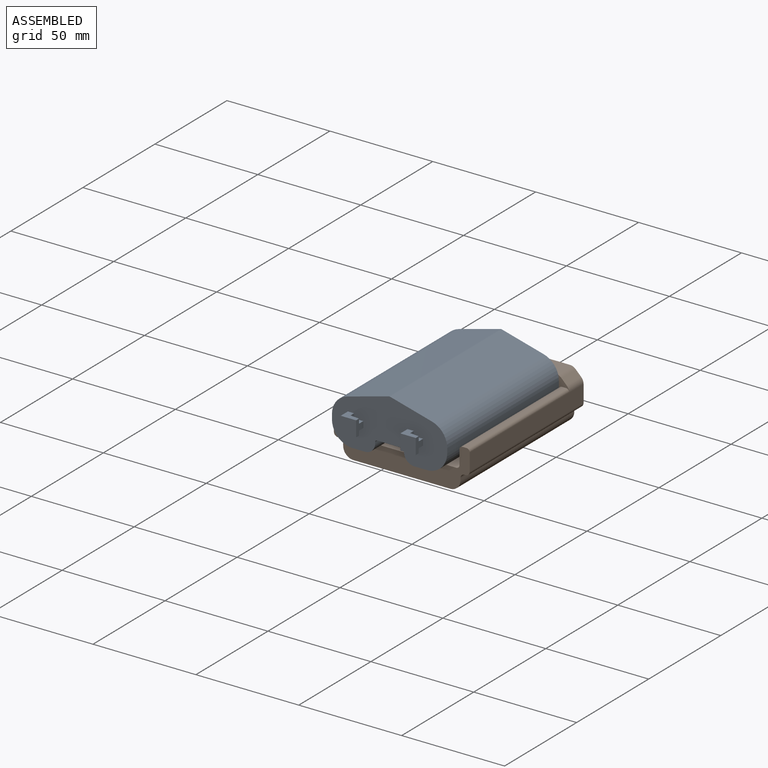
[diagram: assembled view]
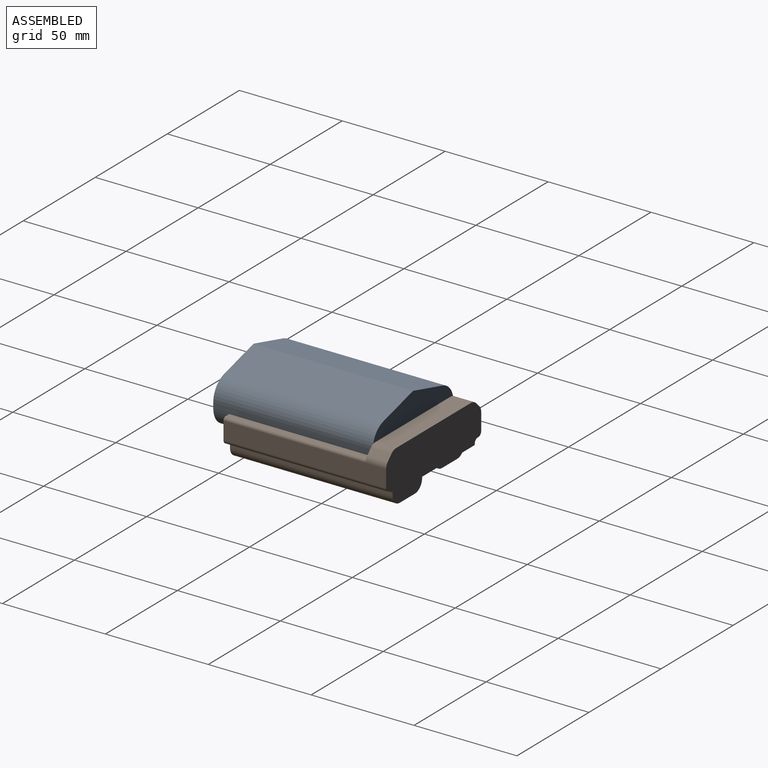
[diagram: assembled view, second angle]
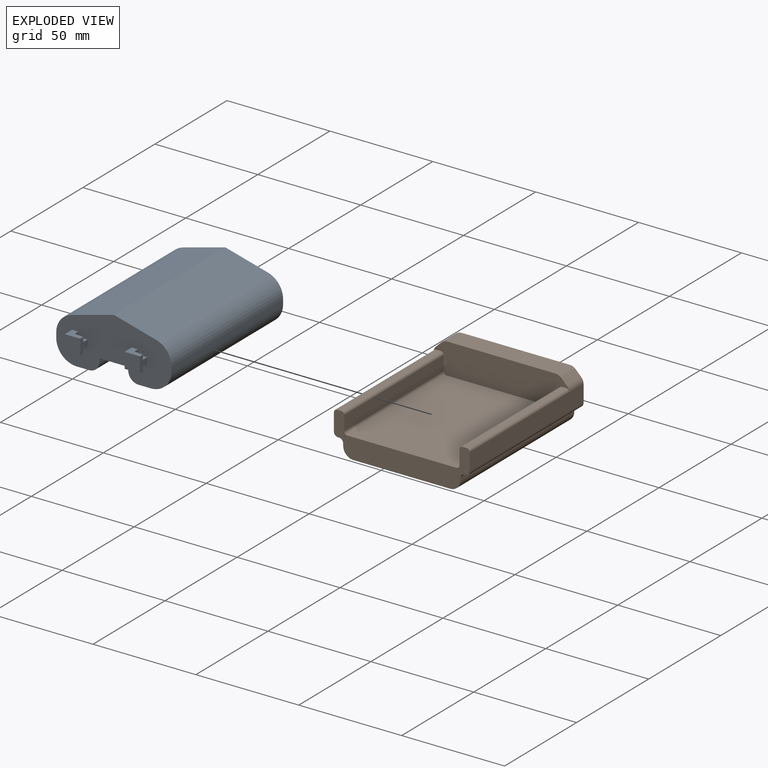
[diagram: exploded view]
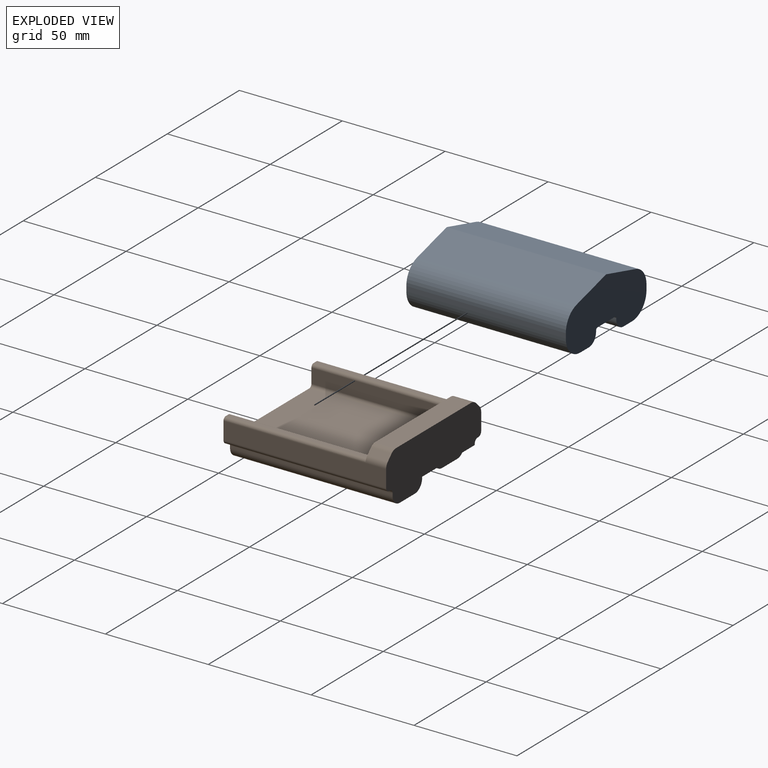
[diagram: exploded view, second angle]
ASSEMBLY  parts=2 mates=3
PART A: 41 faces, bbox 56x82.5x27.5 mm
  f0: plane 7.5x5mm, normal (1,0,0), area 24mm2, adj f2,f22,f23,f24,f30,f31,f38,f40
  f1: plane 7.5x5mm, normal (1,0,0), area 24mm2, adj f2,f26,f27,f28,f33,f34,f35,f37
  f2: plane 56x27.5mm, normal (0,-1,0), area 1091.2mm2, adj f0,f1,f3,f4,f5,f6,f7,f8
  f3: plane 77.5x0.5mm, normal (-1,0,0), area 38.7mm2, adj f2,f4,f19,f20
  f4: cylinder r=5mm len=77.5mm, axis (0,1,0), area 608.7mm2, adj f2,f3,f5,f20
  f5: plane 77.5x6mm, normal (0,0,-1), area 465mm2, adj f2,f4,f6,f20
  f6: cylinder r=10mm len=77.5mm, axis (0,1,0), area 1217.4mm2, adj f2,f5,f7,f20
  f7: plane 77.5x2.33mm, normal (1,0,0), area 180.3mm2, adj f2,f6,f8,f20
  f8: cylinder r=10mm len=77.5mm, axis (0,1,0), area 1014.5mm2, adj f2,f7,f9,f20
  f9: plane 77.5x20.59mm, normal (0.26,0,0.97), area 1651.8mm2, adj f2,f8,f10,f20
  f10: plane 77.5x20.59mm, normal (-0.26,0,0.97), area 1651.8mm2, adj f2,f9,f11,f20
  f11: cylinder r=10mm len=77.5mm, axis (0,1,0), area 1014.5mm2, adj f2,f10,f12,f20
  f12: plane 77.5x2.33mm, normal (-1,0,0), area 180.3mm2, adj f2,f11,f13,f20
  f13: cylinder r=10mm len=77.5mm, axis (0,1,0), area 1217.4mm2, adj f2,f12,f14,f20
  f14: plane 77.5x6mm, normal (0,0,-1), area 465mm2, adj f2,f13,f15,f20
  f15: cylinder r=5mm len=77.5mm, axis (0,1,0), area 608.7mm2, adj f2,f14,f16,f20
  f16: plane 77.5x0.5mm, normal (1,0,0), area 38.7mm2, adj f2,f15,f17,f20
  f17: cylinder r=1mm len=77.5mm, axis (0,1,0), area 121.7mm2, adj f2,f16,f18,f20
  f18: plane 77.5x12mm, normal (0,0,-1), area 930mm2, adj f2,f17,f19,f20
  f19: cylinder r=1mm len=77.5mm, axis (0,1,0), area 121.7mm2, adj f2,f3,f18,f20
  f20: plane 56x27.5mm, normal (0,1,0), area 1163.2mm2, adj f3,f4,f5,f6,f7,f8,f9,f10
  f21: plane 7.5x5mm, normal (-1,0,0), area 37.5mm2, adj f2,f22,f23,f24
  f22: plane 7.5x5mm, normal (0,0,-1), area 25.1mm2, adj f0,f2,f21,f24,f38,f39
  f23: plane 7.5x5mm, normal (0,0,1), area 25.1mm2, adj f0,f2,f21,f24,f29,f30
  f24: plane 7.5x7.5mm, normal (0,-1,0), area 56.3mm2, adj f0,f21,f22,f23
  f25: plane 7.5x5mm, normal (-1,0,0), area 37.5mm2, adj f2,f26,f27,f28
  f26: plane 7.5x5mm, normal (0,0,-1), area 25.1mm2, adj f1,f2,f25,f28,f35,f36
  f27: plane 7.5x5mm, normal (0,0,1), area 25.1mm2, adj f1,f2,f25,f28,f32,f33
  f28: plane 7.5x7.5mm, normal (0,-1,0), area 56.2mm2, adj f1,f25,f26,f27
  f29: plane 2.5x2.25mm, normal (1,0,0), area 5.6mm2, adj f2,f23,f30,f31
  f30: plane 4.5x2.25mm, normal (0.11,0.99,0), area 10.2mm2, adj f0,f23,f29,f31
  f31: plane 4.5x3mm, normal (0,0,1), area 12.4mm2, adj f0,f2,f29,f30
  f32: plane 2.5x2.25mm, normal (1,0,0), area 5.6mm2, adj f2,f27,f33,f34
  f33: plane 4.5x2.25mm, normal (0.11,0.99,0), area 10.2mm2, adj f1,f27,f32,f34
  f34: plane 4.5x3mm, normal (0,0,1), area 12.4mm2, adj f1,f2,f32,f33
  f35: plane 4.5x2.25mm, normal (0.11,0.99,0), area 10.2mm2, adj f1,f26,f36,f37
  f36: plane 2.5x2.25mm, normal (1,0,0), area 5.6mm2, adj f2,f26,f35,f37
  f37: plane 4.5x3mm, normal (0,0,-1), area 12.4mm2, adj f1,f2,f35,f36
  f38: plane 4.5x2.25mm, normal (0.11,0.99,0), area 10.2mm2, adj f0,f22,f39,f40
  f39: plane 2.5x2.25mm, normal (1,0,0), area 5.6mm2, adj f2,f22,f38,f40
  f40: plane 4.5x3mm, normal (0,0,-1), area 12.4mm2, adj f0,f2,f38,f39
PART B: 82 faces, bbox 66x79x25 mm
  f0: plane 11x0.5mm, normal (1,0,0), area 5.5mm2, adj f1,f9,f61,f65
  f1: cylinder r=5mm len=66mm, axis (0,1,0), area 475.3mm2, adj f0,f2,f8,f13,f25,f45,f46,f47
  f2: plane 79x47mm, normal (0,0,-1), area 1719.5mm2, adj f1,f3,f6,f15,f24,f25,f37,f65
  f3: plane 66x25mm, normal (0,1,0), area 1339.9mm2, adj f2,f4,f6,f9,f10,f11,f12,f15
  f4: plane 16x0.5mm, normal (-1,0,0), area 8mm2, adj f3,f6,f9,f60
  f5: plane 13.5x0.5mm, normal (-1,0,0), area 6.7mm2, adj f6,f9,f55,f58
  f6: cylinder r=5mm len=71mm, axis (0,1,0), area 503.5mm2, adj f2,f3,f4,f5,f7,f14,f25,f49
  f7: plane 15.5x0.5mm, normal (-1,0,0), area 7.7mm2, adj f6,f9,f52,f56
  f8: plane 32x0.5mm, normal (1,0,0), area 16mm2, adj f1,f9,f46,f62
  f9: plane 71x36.5mm, normal (0,0,-1), area 1192mm2, adj f0,f3,f4,f5,f7,f8,f13,f14
  f10: plane 52.27x10mm, normal (0,0,1), area 522.7mm2, adj f3,f38,f41,f44
  f11: plane 79x8.34mm, normal (1,0,0), area 659.1mm2, adj f3,f19,f37,f42
  f12: plane 79x8.34mm, normal (-1,0,0), area 659.1mm2, adj f3,f20,f37,f43
  f13: plane 12x0.5mm, normal (1,0,0), area 6mm2, adj f1,f9,f25,f45
  f14: plane 12x0.5mm, normal (-1,0,0), area 6mm2, adj f6,f9,f25,f50
  f15: cylinder r=5mm len=79mm, axis (0,1,0), area 620.5mm2, adj f2,f3,f16,f37
  f16: plane 79x1mm, normal (1,0,0), area 79mm2, adj f3,f15,f17,f37
  f17: cylinder r=2mm len=79mm, axis (0,1,0), area 248.2mm2, adj f3,f16,f18,f37
  f18: plane 79x0.5mm, normal (0,0,-1), area 39.5mm2, adj f3,f17,f19,f37
  f19: cylinder r=2mm len=79mm, axis (0,1,0), area 248.2mm2, adj f3,f11,f18,f37
  f20: cylinder r=2mm len=79mm, axis (0,1,0), area 248.2mm2, adj f3,f12,f21,f37
  f21: plane 79x0.5mm, normal (0,0,-1), area 39.5mm2, adj f3,f20,f22,f37
  f22: cylinder r=2mm len=79mm, axis (0,1,0), area 248.2mm2, adj f3,f21,f23,f37
  f23: plane 79x1mm, normal (-1,0,0), area 76.5mm2, adj f3,f9,f22,f24,f37,f65
  f24: cylinder r=5mm len=74mm, axis (0,1,0), area 581.2mm2, adj f2,f23,f37,f65
  f25: plane 26x5.5mm, normal (0,1,0), area 98.7mm2, adj f1,f2,f6,f9,f13,f14
  f26: cylinder r=1.5mm len=69mm, axis (0,1,0), area 145.5mm2, adj f27,f37,f38,f42
  f27: plane 69x2mm, normal (0,0,1), area 138mm2, adj f26,f28,f37,f38
  f28: cylinder r=1.5mm len=69mm, axis (0,1,0), area 162.6mm2, adj f27,f29,f37,f38
  f29: plane 69x7mm, normal (-1,0,0), area 483mm2, adj f28,f30,f37,f38
  f30: cylinder r=1.5mm len=69mm, axis (0,1,0), area 162.6mm2, adj f29,f31,f37,f38
  f31: plane 69x53mm, normal (0,0,1), area 3657mm2, adj f30,f32,f37,f38
  f32: cylinder r=1.5mm len=69mm, axis (0,1,0), area 162.6mm2, adj f31,f33,f37,f38
  f33: plane 69x7mm, normal (1,0,0), area 483mm2, adj f32,f34,f37,f38
  f34: cylinder r=1.5mm len=69mm, axis (0,1,0), area 162.6mm2, adj f33,f35,f37,f38
  f35: plane 69x2mm, normal (0,0,1), area 138mm2, adj f34,f36,f37,f38
  f36: cylinder r=1.5mm len=69mm, axis (0,1,0), area 145.5mm2, adj f35,f37,f38,f43
  f37: plane 66x20mm, normal (0,-1,0), area 676.3mm2, adj f2,f11,f12,f15,f16,f17,f18,f19
  f38: plane 65.96x15mm, normal (0,-1,0), area 864.4mm2, adj f10,f26,f27,f28,f29,f30,f31,f32
  f39: plane 10x2.36mm, normal (-0.71,0,0.71), area 33.4mm2, adj f3,f38,f43,f44
  f40: plane 10x2.66mm, normal (0.71,0,0.71), area 37.6mm2, adj f3,f38,f41,f42
  f41: cylinder r=4mm len=10mm, axis (0,-1,0), area 31.4mm2, adj f3,f10,f38,f40
  f42: cylinder r=4mm len=79mm, axis (0,1,0), area 59.3mm2, adj f3,f11,f26,f37,f38,f40
  f43: cylinder r=4mm len=79mm, axis (0,-1,0), area 59.3mm2, adj f3,f12,f36,f37,f38,f39
  f44: cylinder r=5mm len=10mm, axis (0,-1,0), area 39.3mm2, adj f3,f10,f38,f39
  f45: plane 4.6x3.64mm, normal (0,-1,0), area 9.5mm2, adj f1,f9,f13,f47,f48
  f46: plane 4.6x3.64mm, normal (0,1,0), area 9.5mm2, adj f1,f8,f9,f47,f48
  f47: plane 8x3.64mm, normal (0,0,-1), area 29.1mm2, adj f1,f45,f46,f48
  f48: plane 8x4.6mm, normal (1,0,0), area 36.8mm2, adj f9,f45,f46,f47
  f49: plane 8x3.64mm, normal (0,0,-1), area 29.1mm2, adj f6,f50,f51,f52
  f50: plane 4.6x3.64mm, normal (0,-1,0), area 9.5mm2, adj f6,f9,f14,f49,f51
  f51: plane 8x4.6mm, normal (-1,0,0), area 36.8mm2, adj f9,f49,f50,f52
  f52: plane 4.6x3.64mm, normal (0,1,0), area 9.5mm2, adj f6,f7,f9,f49,f51
  f53: plane 3.17x3mm, normal (0,0,-1), area 9.5mm2, adj f6,f54,f55,f56
  f54: plane 3x3mm, normal (-1,0,0), area 9mm2, adj f9,f53,f55,f56
  f55: plane 3.17x3mm, normal (0,1,0), area 8mm2, adj f5,f6,f9,f53,f54
  f56: plane 3.17x3mm, normal (0,-1,0), area 8mm2, adj f6,f7,f9,f53,f54
  f57: plane 3.17x3mm, normal (0,0,-1), area 9.5mm2, adj f6,f58,f59,f60
  f58: plane 3.17x3mm, normal (0,-1,0), area 8mm2, adj f5,f6,f9,f57,f59
  f59: plane 3x3mm, normal (-1,0,0), area 9mm2, adj f9,f57,f58,f60
  f60: plane 3.17x3mm, normal (0,1,0), area 8mm2, adj f4,f6,f9,f57,f59
  f61: plane 2.73x2mm, normal (0,1,0), area 5.1mm2, adj f0,f1,f9,f63,f64
  f62: plane 2.73x2mm, normal (0,-1,0), area 5.1mm2, adj f1,f8,f9,f63,f64
  f63: plane 3x2.73mm, normal (0,0,-1), area 8.2mm2, adj f1,f61,f62,f64
  f64: plane 3x2mm, normal (1,0,0), area 6mm2, adj f9,f61,f62,f63
  f65: plane 20.5x5.5mm, normal (0,1,0), area 102mm2, adj f0,f1,f2,f9,f23,f24
  f66: cylinder r=2.75mm len=5.5mm, axis (0,0,-1), area 51.8mm2, adj f2,f67
  f67: plane 5.5x5.5mm, normal (0,0,-1), area 18.8mm2, adj f66,f80
  f68: cylinder r=2.75mm len=5.5mm, axis (0,0,-1), area 51.8mm2, adj f2,f69
  f69: plane 5.5x5.5mm, normal (0,0,-1), area 18.8mm2, adj f68,f78
  f70: cylinder r=2.75mm len=5.5mm, axis (0,0,-1), area 51.8mm2, adj f2,f71
  f71: plane 5.5x5.5mm, normal (0,0,-1), area 18.8mm2, adj f70,f76
  f72: cylinder r=2.75mm len=5.5mm, axis (0,0,-1), area 51.8mm2, adj f2,f73
  f73: plane 5.5x5.5mm, normal (0,0,-1), area 18.8mm2, adj f72,f74
  f74: cylinder r=1.25mm len=4mm, axis (0,0,-1), area 31.4mm2, adj f73,f75
  f75: plane 2.5x2.5mm, normal (0,0,-1), area 4.9mm2, adj f74
  f76: cylinder r=1.25mm len=4mm, axis (0,0,-1), area 31.4mm2, adj f71,f77
  f77: plane 2.5x2.5mm, normal (0,0,-1), area 4.9mm2, adj f76
  f78: cylinder r=1.25mm len=4mm, axis (0,0,-1), area 31.4mm2, adj f69,f79
  f79: plane 2.5x2.5mm, normal (0,0,-1), area 4.9mm2, adj f78
  f80: cylinder r=1.25mm len=4mm, axis (0,0,-1), area 31.4mm2, adj f67,f81
  f81: plane 2.5x2.5mm, normal (0,0,-1), area 4.9mm2, adj f80
PLACE A t=(11.2,-32.66,48.85)mm
PLACE B t=(11.2,-22.66,34.69)mm
MATE planar A.f12 <-> B.f33  axis (-1,0,0) through (-16.8,-71.41,43.35)mm
MATE planar A.f20 <-> B.f38  axis (0,1,0) through (11.2,-32.66,45.17)mm
MATE planar A.f14 <-> B.f31  axis (0,0,-1) through (-3.8,-71.41,32.19)mm
